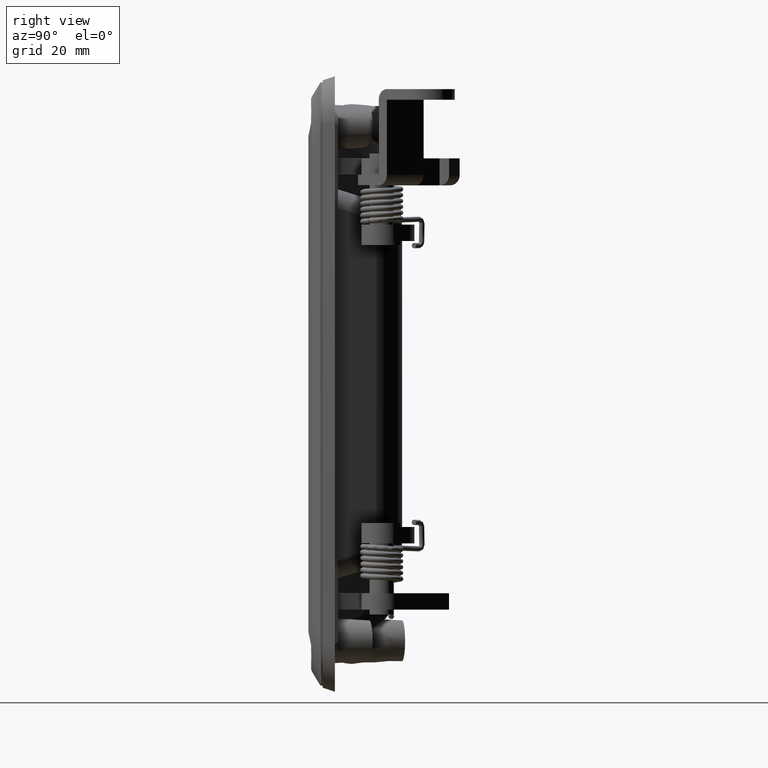
[diagram: clean part render]
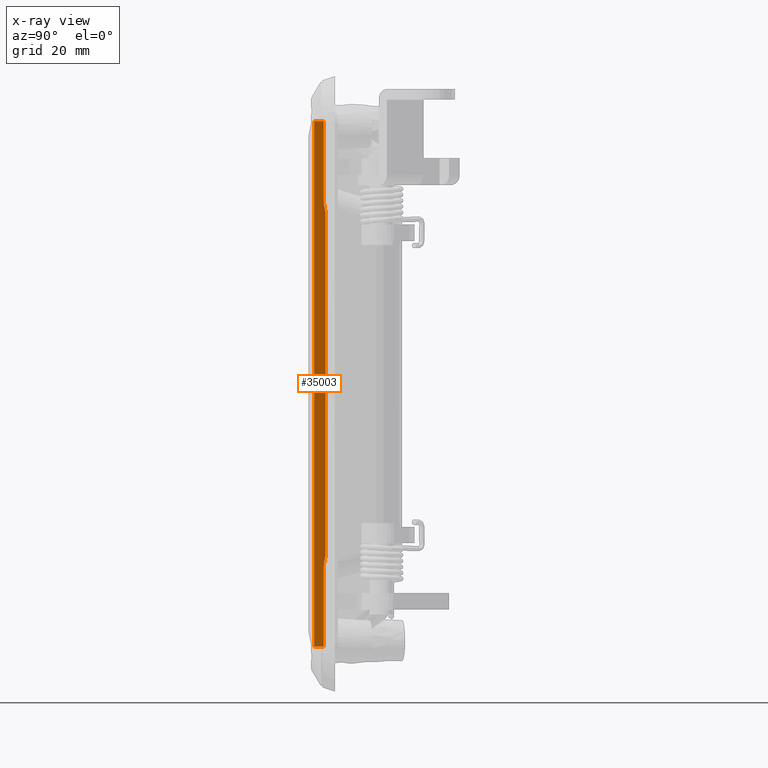
[diagram: x-ray — body ghosted, one internal face saturated and labeled with its STEP entity id]
A machine part, right view, then the same camera in x-ray: the body is ghosted and one INTERNAL B-rep face — a face not visible from any outside direction — is saturated and labeled: STEP entity #35003.
In plain terms, the highlighted face is a freeform B-spline surface patch.
Its self-contained STEP definition (entity closure, byte-faithful):
#31480=CARTESIAN_POINT('',(24.571571275521102,3.091738090205000,64.500000000000000));
#31481=VERTEX_POINT('',#31480);
#31576=CARTESIAN_POINT('',(24.571571275521102,3.091738090205000,44.738491586000848));
#31577=VERTEX_POINT('',#31576);
#31588=CARTESIAN_POINT('',(24.571571275521102,3.091738090205000,64.500000000000000));
#31589=CARTESIAN_POINT('',(24.571571275521102,3.091738090205000,44.738491586000848));
#31590=QUASI_UNIFORM_CURVE('',1,(#31588,#31589),.UNSPECIFIED.,.F.,.U.);
#31591=EDGE_CURVE('',#31481,#31577,#31590,.T.);
#31753=CARTESIAN_POINT('',(24.446041796649801,3.560220483200360,41.693536204498351));
#31754=VERTEX_POINT('',#31753);
#31763=CARTESIAN_POINT('',(24.571571275521102,3.091738090205000,44.738491586000848));
#31764=CARTESIAN_POINT('',(24.571571275521091,3.091738090205009,44.477507083563530));
#31765=CARTESIAN_POINT('',(24.565332987422110,3.115019698342716,44.220712547329413));
#31766=CARTESIAN_POINT('',(24.549827148151380,3.172888278315132,43.839650340335297));
#31767=CARTESIAN_POINT('',(24.543631075289539,3.196012337042928,43.713319701320493));
#31768=CARTESIAN_POINT('',(24.529821736181692,3.247549492212350,43.461610285771222));
#31769=CARTESIAN_POINT('',(24.522204828753338,3.275976177731489,43.336233954848517));
#31770=CARTESIAN_POINT('',(24.506388821991990,3.335002318537720,43.085872324062613));
#31771=CARTESIAN_POINT('',(24.498187142896288,3.365611401630242,42.960888756905263));
#31772=CARTESIAN_POINT('',(24.482341687292539,3.424747447012527,42.710546905528737));
#31773=CARTESIAN_POINT('',(24.474701410719600,3.453261347366631,42.585186270566972));
#31774=CARTESIAN_POINT('',(24.461434984016851,3.502772325856144,42.333112206160088));
#31775=CARTESIAN_POINT('',(24.455826645315870,3.523702930834280,42.206367159073309));
#31776=CARTESIAN_POINT('',(24.448103466957569,3.552526224863370,41.950610048496692));
#31777=CARTESIAN_POINT('',(24.446041796649801,3.560220483200443,41.822312874472878));
#31778=CARTESIAN_POINT('',(24.446041796649801,3.560220483200400,41.693536204497200));
#31779=B_SPLINE_CURVE_WITH_KNOTS('',3,(#31763,#31764,#31765,#31766,#31767,#31768,#31769,#31770,#31771,#31772,#31773,#31774,#31775,#31776,#31777,#31778),.UNSPECIFIED.,.F.,.U.,(4,2,2,2,2,2,2,4),(0.0,0.250000000000000,0.375000000000000,0.500000000000000,0.625000000000000,0.750000000000000,0.875000000000000,1.0),.UNSPECIFIED.);
#31780=EDGE_CURVE('',#31577,#31754,#31779,.T.);
#31857=CARTESIAN_POINT('',(24.446041796649851,3.560220483200305,-41.693550330479653));
#31858=VERTEX_POINT('',#31857);
#31867=CARTESIAN_POINT('',(24.446041796649801,3.560220483200360,41.693536204498351));
#31868=CARTESIAN_POINT('',(24.446041796649851,3.560220483200305,-41.693550330479653));
#31869=QUASI_UNIFORM_CURVE('',1,(#31867,#31868),.UNSPECIFIED.,.F.,.U.);
#31870=EDGE_CURVE('',#31754,#31858,#31869,.T.);
#32029=CARTESIAN_POINT('',(24.571571275521151,3.091738090205000,-44.738507819616949));
#32030=VERTEX_POINT('',#32029);
#32041=CARTESIAN_POINT('',(24.446041796649851,3.560220483200305,-41.693550330479653));
#32042=CARTESIAN_POINT('',(24.446041796649862,3.560220483200303,-41.823701431777373));
#32043=CARTESIAN_POINT('',(24.448145049278850,3.552371037527769,-41.952513829561852));
#32044=CARTESIAN_POINT('',(24.455887779134720,3.523474776316330,-42.207887846395650));
#32045=CARTESIAN_POINT('',(24.461498713337900,3.502534484792145,-42.334467632851698));
#32046=CARTESIAN_POINT('',(24.474767350738539,3.453015255865744,-42.586324453633353));
#32047=CARTESIAN_POINT('',(24.482406581834429,3.424505257285084,-42.711613245304193));
#32048=CARTESIAN_POINT('',(24.498247491274260,3.365386178417562,-42.961832835461209));
#32049=CARTESIAN_POINT('',(24.506445114032719,3.334792233781712,-43.086759323319768));
#32050=CARTESIAN_POINT('',(24.530156490574360,3.246300171810914,-43.462162912112852));
#32051=CARTESIAN_POINT('',(24.544697959029531,3.192030672719556,-43.713358891919562));
#32052=CARTESIAN_POINT('',(24.565370513339790,3.114879649711452,-44.221908073746931));
#32053=CARTESIAN_POINT('',(24.571571275521158,3.091738090205000,-44.479976919905731));
#32054=CARTESIAN_POINT('',(24.571571275521151,3.091738090205005,-44.738507819616949));
#32055=B_SPLINE_CURVE_WITH_KNOTS('',3,(#32041,#32042,#32043,#32044,#32045,#32046,#32047,#32048,#32049,#32050,#32051,#32052,#32053,#32054),.UNSPECIFIED.,.F.,.U.,(4,2,2,2,2,2,4),(0.0,0.125000000000002,0.250000000000003,0.375000000000005,0.500000000000007,0.750000000000003,1.0),.UNSPECIFIED.);
#32056=EDGE_CURVE('',#31858,#32030,#32055,.T.);
#32133=CARTESIAN_POINT('',(24.571571275521151,3.091738090205000,-64.500000000000000));
#32134=VERTEX_POINT('',#32133);
#32145=CARTESIAN_POINT('',(24.571571275521151,3.091738090205000,-44.738507819616949));
#32146=CARTESIAN_POINT('',(24.571571275521151,3.091738090205000,-64.500000000000000));
#32147=QUASI_UNIFORM_CURVE('',1,(#32145,#32146),.UNSPECIFIED.,.F.,.U.);
#32148=EDGE_CURVE('',#32030,#32134,#32147,.T.);
#34949=CARTESIAN_POINT('',(25.201401161690001,0.741180954897477,-64.500000000000000));
#34950=VERTEX_POINT('',#34949);
#34951=CARTESIAN_POINT('',(24.571571275521151,3.091738090205000,-64.500000000000000));
#34952=CARTESIAN_POINT('',(25.201401161690001,0.741180954897477,-64.500000000000000));
#34953=QUASI_UNIFORM_CURVE('',1,(#34951,#34952),.UNSPECIFIED.,.F.,.U.);
#34954=EDGE_CURVE('',#32134,#34950,#34953,.T.);
#34978=CARTESIAN_POINT('',(24.408311597830000,3.701031502175223,-70.943549749972973));
#34979=CARTESIAN_POINT('',(25.239131380769930,0.600369860310033,-70.943549749972973));
#34980=CARTESIAN_POINT('',(24.408311597829972,3.701031502175215,70.943553210022600));
#34981=CARTESIAN_POINT('',(25.239131380769908,0.600369860310025,70.943553210022600));
#34982=B_SPLINE_SURFACE_WITH_KNOTS('',1,1,((#34978,#34980),(#34979,#34981)),.UNSPECIFIED.,.F.,.F.,.U.,(2,2),(2,2),(0.0,3.210041141334253),(0.0,141.887102959995590),.UNSPECIFIED.);
#34983=CARTESIAN_POINT('',(25.201401161689951,0.741180954897479,64.500000000000000));
#34984=VERTEX_POINT('',#34983);
#34985=CARTESIAN_POINT('',(24.571571275521102,3.091738090205000,64.500000000000000));
#34986=CARTESIAN_POINT('',(25.201401161689951,0.741180954897479,64.500000000000000));
#34987=QUASI_UNIFORM_CURVE('',1,(#34985,#34986),.UNSPECIFIED.,.F.,.U.);
#34988=EDGE_CURVE('',#31481,#34984,#34987,.T.);
#34989=ORIENTED_EDGE('',*,*,#34988,.F.);
#34990=ORIENTED_EDGE('',*,*,#31591,.T.);
#34991=ORIENTED_EDGE('',*,*,#31780,.T.);
#34992=ORIENTED_EDGE('',*,*,#31870,.T.);
#34993=ORIENTED_EDGE('',*,*,#32056,.T.);
#34994=ORIENTED_EDGE('',*,*,#32148,.T.);
#34995=ORIENTED_EDGE('',*,*,#34954,.T.);
#34996=CARTESIAN_POINT('',(25.201401161690001,0.741180954897477,-64.500000000000000));
#34997=CARTESIAN_POINT('',(25.201401161689951,0.741180954897479,64.500000000000000));
#34998=QUASI_UNIFORM_CURVE('',1,(#34996,#34997),.UNSPECIFIED.,.F.,.U.);
#34999=EDGE_CURVE('',#34950,#34984,#34998,.T.);
#35000=ORIENTED_EDGE('',*,*,#34999,.T.);
#35001=EDGE_LOOP('',(#34989,#34990,#34991,#34992,#34993,#34994,#34995,#35000));
#35002=FACE_OUTER_BOUND('',#35001,.T.);
#35003=ADVANCED_FACE('',(#35002),#34982,.T.);